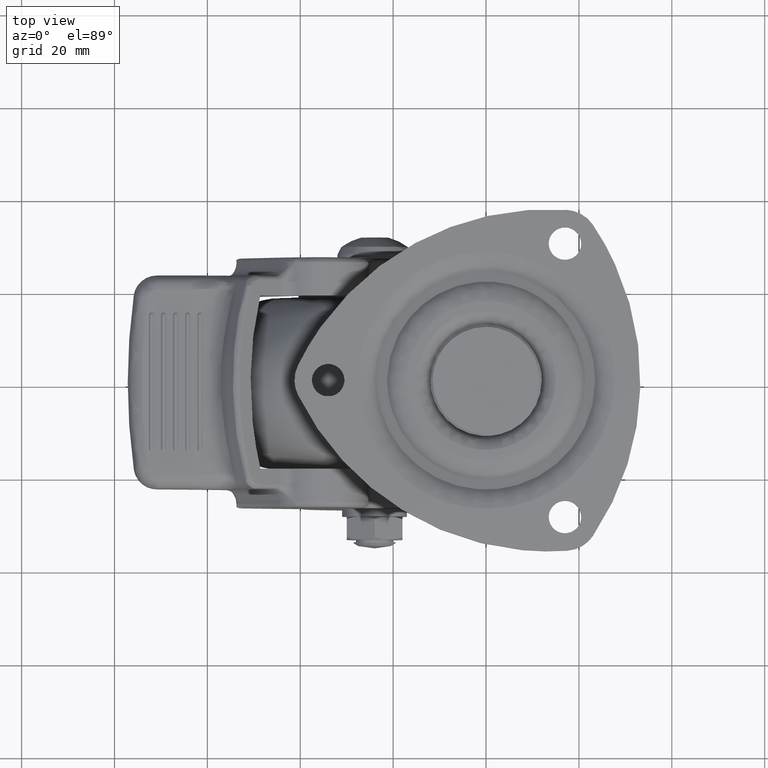
[diagram: clean part render]
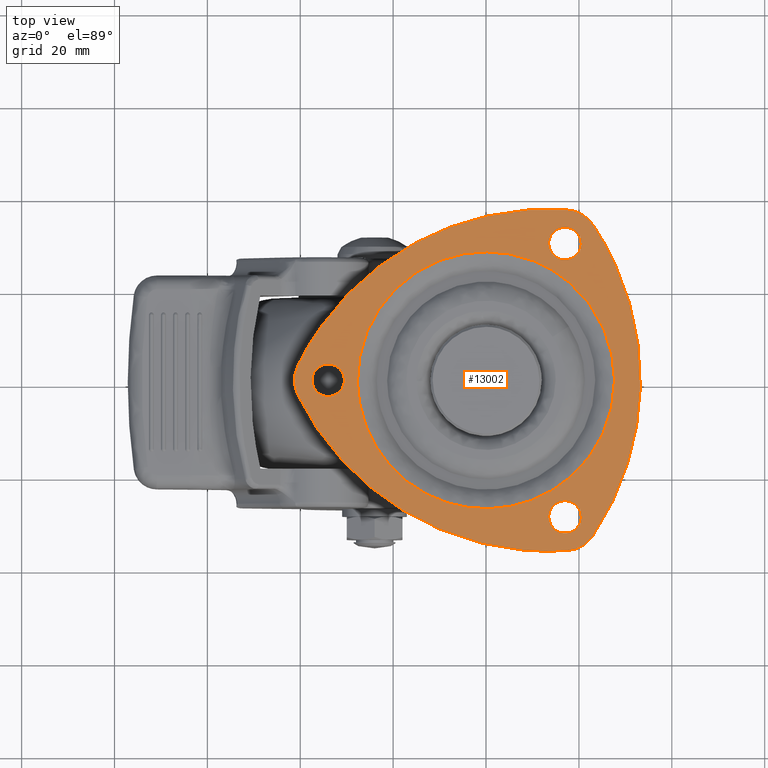
[diagram: same view with one face highlighted and labeled with its STEP entity id]
A machine part, top view. The second image highlights one B-rep face of the part: STEP entity #13002.
In plain terms, the highlighted face is a freeform B-spline surface patch.
Its self-contained STEP definition (entity closure, byte-faithful):
#11365=CARTESIAN_POINT('',(16.586880178302810,25.969329657774541,-0.000014399278325));
#11366=VERTEX_POINT('',#11365);
#11367=CARTESIAN_POINT('',(20.500000000000000,29.444863000000002,-0.000014399278325));
#11368=VERTEX_POINT('',#11367);
#11369=CARTESIAN_POINT('',(16.586880178302810,25.969329657774541,-0.000014399278325));
#11370=CARTESIAN_POINT('',(16.792715580815571,25.944863000000005,-0.000014399278325));
#11371=CARTESIAN_POINT('',(17.0,25.944863000000002,-0.000014399278325));
#11372=CARTESIAN_POINT('',(20.499999999999996,25.944862999999998,-0.000014399278325));
#11373=CARTESIAN_POINT('',(20.500000000000000,29.444863000000002,-0.000014399278325));
#11381=(BOUNDED_CURVE()B_SPLINE_CURVE(2,(#11369,#11370,#11371,#11372,#11373),.UNSPECIFIED.,.F.,.U.)B_SPLINE_CURVE_WITH_KNOTS((3,2,3),(0.229562473476886,0.250000000000000,0.500000000000000),.UNSPECIFIED.)CURVE()GEOMETRIC_REPRESENTATION_ITEM()RATIONAL_B_SPLINE_CURVE((0.956026754111918,0.976055948288239,1.0,0.707106781186547,1.0))REPRESENTATION_ITEM(''));
#11382=EDGE_CURVE('',#11366,#11368,#11381,.T.);
#11384=CARTESIAN_POINT('',(17.213669888476620,32.938334794470137,-0.000014399278325));
#11385=VERTEX_POINT('',#11384);
#11386=CARTESIAN_POINT('',(20.500000000000000,29.444863000000002,-0.000014399278325));
#11387=CARTESIAN_POINT('',(20.499999999999989,32.737334233972362,-0.000014399278325));
#11388=CARTESIAN_POINT('',(17.213669888476627,32.938334794470144,-0.000014399278325));
#11396=(BOUNDED_CURVE()B_SPLINE_CURVE(2,(#11386,#11387,#11388),.UNSPECIFIED.,.F.,.U.)B_SPLINE_CURVE_WITH_KNOTS((3,3),(0.500000000000000,0.739332962231633),.UNSPECIFIED.)CURVE()GEOMETRIC_REPRESENTATION_ITEM()RATIONAL_B_SPLINE_CURVE((1.0,0.719603993295274,0.976072041651052))REPRESENTATION_ITEM(''));
#11397=EDGE_CURVE('',#11368,#11385,#11396,.T.);
#11464=CARTESIAN_POINT('',(13.500000000000000,29.444863000000002,-0.000014399278325));
#11465=VERTEX_POINT('',#11464);
#11466=CARTESIAN_POINT('',(13.500000000000000,29.444863000000002,-0.000014399278325));
#11467=CARTESIAN_POINT('',(13.500000000000002,26.336252159888144,-0.000014399278325));
#11468=CARTESIAN_POINT('',(16.586880178302817,25.969329657774537,-0.000014399278325));
#11476=(BOUNDED_CURVE()B_SPLINE_CURVE(2,(#11466,#11467,#11468),.UNSPECIFIED.,.F.,.U.)B_SPLINE_CURVE_WITH_KNOTS((3,3),(0.0,0.229562473476886),.UNSPECIFIED.)CURVE()GEOMETRIC_REPRESENTATION_ITEM()RATIONAL_B_SPLINE_CURVE((1.0,0.731050832898308,0.956026754111918))REPRESENTATION_ITEM(''));
#11477=EDGE_CURVE('',#11465,#11366,#11476,.T.);
#11511=CARTESIAN_POINT('',(17.213669888476627,32.938334794470137,-0.000014399278325));
#11512=CARTESIAN_POINT('',(17.106934671649970,32.944863000000005,-0.000014399278325));
#11513=CARTESIAN_POINT('',(17.0,32.944863000000012,-0.000014399278325));
#11514=CARTESIAN_POINT('',(13.500000000000002,32.944863000000012,-0.000014399278325));
#11515=CARTESIAN_POINT('',(13.500000000000000,29.444863000000002,-0.000014399278325));
#11523=(BOUNDED_CURVE()B_SPLINE_CURVE(2,(#11511,#11512,#11513,#11514,#11515),.UNSPECIFIED.,.F.,.U.)B_SPLINE_CURVE_WITH_KNOTS((3,2,3),(0.739332962231633,0.750000000000000,1.0),.UNSPECIFIED.)CURVE()GEOMETRIC_REPRESENTATION_ITEM()RATIONAL_B_SPLINE_CURVE((0.976072041651052,0.987502787891274,1.0,0.707106781186547,1.0))REPRESENTATION_ITEM(''));
#11524=EDGE_CURVE('',#11385,#11465,#11523,.T.);
#11551=CARTESIAN_POINT('',(16.586880178302810,-32.920397342225463,-0.000014399278325));
#11552=VERTEX_POINT('',#11551);
#11553=CARTESIAN_POINT('',(20.500000000000000,-29.444863999999999,-0.000014399278325));
#11554=VERTEX_POINT('',#11553);
#11555=CARTESIAN_POINT('',(16.586880178302817,-32.920397342225471,-0.000014399278325));
#11556=CARTESIAN_POINT('',(16.792715580815564,-32.944864000000003,-0.000014399278325));
#11557=CARTESIAN_POINT('',(17.0,-32.944864000000003,-0.000014399278325));
#11558=CARTESIAN_POINT('',(20.499999999999996,-32.944864000000010,-0.000014399278325));
#11559=CARTESIAN_POINT('',(20.500000000000000,-29.444863999999999,-0.000014399278325));
#11567=(BOUNDED_CURVE()B_SPLINE_CURVE(2,(#11555,#11556,#11557,#11558,#11559),.UNSPECIFIED.,.F.,.U.)B_SPLINE_CURVE_WITH_KNOTS((3,2,3),(0.229562473476886,0.250000000000000,0.500000000000000),.UNSPECIFIED.)CURVE()GEOMETRIC_REPRESENTATION_ITEM()RATIONAL_B_SPLINE_CURVE((0.956026754111917,0.976055948288239,1.0,0.707106781186547,1.0))REPRESENTATION_ITEM(''));
#11568=EDGE_CURVE('',#11552,#11554,#11567,.T.);
#11570=CARTESIAN_POINT('',(17.213669888476620,-25.951392205529871,-0.000014399278325));
#11571=VERTEX_POINT('',#11570);
#11572=CARTESIAN_POINT('',(20.500000000000000,-29.444863999999999,-0.000014399278325));
#11573=CARTESIAN_POINT('',(20.499999999999989,-26.152392766027646,-0.000014399278325));
#11574=CARTESIAN_POINT('',(17.213669888476627,-25.951392205529864,-0.000014399278325));
#11582=(BOUNDED_CURVE()B_SPLINE_CURVE(2,(#11572,#11573,#11574),.UNSPECIFIED.,.F.,.U.)B_SPLINE_CURVE_WITH_KNOTS((3,3),(0.500000000000000,0.739332962231633),.UNSPECIFIED.)CURVE()GEOMETRIC_REPRESENTATION_ITEM()RATIONAL_B_SPLINE_CURVE((1.0,0.719603993295274,0.976072041651052))REPRESENTATION_ITEM(''));
#11583=EDGE_CURVE('',#11554,#11571,#11582,.T.);
#11650=CARTESIAN_POINT('',(13.500000000000000,-29.444863999999999,-0.000014399278325));
#11651=VERTEX_POINT('',#11650);
#11652=CARTESIAN_POINT('',(13.500000000000000,-29.444863999999999,-0.000014399278325));
#11653=CARTESIAN_POINT('',(13.500000000000004,-32.553474840111853,-0.000014399278325));
#11654=CARTESIAN_POINT('',(16.586880178302810,-32.920397342225463,-0.000014399278325));
#11662=(BOUNDED_CURVE()B_SPLINE_CURVE(2,(#11652,#11653,#11654),.UNSPECIFIED.,.F.,.U.)B_SPLINE_CURVE_WITH_KNOTS((3,3),(0.0,0.229562473476885),.UNSPECIFIED.)CURVE()GEOMETRIC_REPRESENTATION_ITEM()RATIONAL_B_SPLINE_CURVE((1.0,0.731050832898309,0.956026754111917))REPRESENTATION_ITEM(''));
#11663=EDGE_CURVE('',#11651,#11552,#11662,.T.);
#11697=CARTESIAN_POINT('',(17.213669888476627,-25.951392205529867,-0.000014399278325));
#11698=CARTESIAN_POINT('',(17.106934671649970,-25.944864000000003,-0.000014399278325));
#11699=CARTESIAN_POINT('',(17.0,-25.944863999999999,-0.000014399278325));
#11700=CARTESIAN_POINT('',(13.500000000000002,-25.944863999999995,-0.000014399278325));
#11701=CARTESIAN_POINT('',(13.500000000000000,-29.444863999999999,-0.000014399278325));
#11709=(BOUNDED_CURVE()B_SPLINE_CURVE(2,(#11697,#11698,#11699,#11700,#11701),.UNSPECIFIED.,.F.,.U.)B_SPLINE_CURVE_WITH_KNOTS((3,2,3),(0.739332962231633,0.750000000000000,1.0),.UNSPECIFIED.)CURVE()GEOMETRIC_REPRESENTATION_ITEM()RATIONAL_B_SPLINE_CURVE((0.976072041651052,0.987502787891274,1.0,0.707106781186547,1.0))REPRESENTATION_ITEM(''));
#11710=EDGE_CURVE('',#11571,#11651,#11709,.T.);
#11737=CARTESIAN_POINT('',(-34.413119821697187,-3.475533342225461,-0.000014399278325));
#11738=VERTEX_POINT('',#11737);
#11739=CARTESIAN_POINT('',(-30.500000000000000,0.0,-0.000014399278325));
#11740=VERTEX_POINT('',#11739);
#11741=CARTESIAN_POINT('',(-34.413119821697194,-3.475533342225460,-0.000014399278325));
#11742=CARTESIAN_POINT('',(-34.207284419184433,-3.500000000000000,-0.000014399278325));
#11743=CARTESIAN_POINT('',(-34.0,-3.500000000000000,-0.000014399278325));
#11744=CARTESIAN_POINT('',(-30.500000000000004,-3.500000000000000,-0.000014399278325));
#11745=CARTESIAN_POINT('',(-30.500000000000000,0.0,-0.000014399278325));
#11753=(BOUNDED_CURVE()B_SPLINE_CURVE(2,(#11741,#11742,#11743,#11744,#11745),.UNSPECIFIED.,.F.,.U.)B_SPLINE_CURVE_WITH_KNOTS((3,2,3),(0.229562473476886,0.250000000000000,0.500000000000000),.UNSPECIFIED.)CURVE()GEOMETRIC_REPRESENTATION_ITEM()RATIONAL_B_SPLINE_CURVE((0.956026754111917,0.976055948288239,1.0,0.707106781186547,1.0))REPRESENTATION_ITEM(''));
#11754=EDGE_CURVE('',#11738,#11740,#11753,.T.);
#11756=CARTESIAN_POINT('',(-33.786330111523370,3.493471794470135,-0.000014399278325));
#11757=VERTEX_POINT('',#11756);
#11758=CARTESIAN_POINT('',(-30.500000000000000,0.0,-0.000014399278325));
#11759=CARTESIAN_POINT('',(-30.500000000000004,3.292471233972352,-0.000014399278325));
#11760=CARTESIAN_POINT('',(-33.786330111523363,3.493471794470135,-0.000014399278325));
#11768=(BOUNDED_CURVE()B_SPLINE_CURVE(2,(#11758,#11759,#11760),.UNSPECIFIED.,.F.,.U.)B_SPLINE_CURVE_WITH_KNOTS((3,3),(0.500000000000000,0.739332962231633),.UNSPECIFIED.)CURVE()GEOMETRIC_REPRESENTATION_ITEM()RATIONAL_B_SPLINE_CURVE((1.0,0.719603993295274,0.976072041651052))REPRESENTATION_ITEM(''));
#11769=EDGE_CURVE('',#11740,#11757,#11768,.T.);
#11836=CARTESIAN_POINT('',(-37.500000000000007,0.0,-0.000014399278325));
#11837=VERTEX_POINT('',#11836);
#11838=CARTESIAN_POINT('',(-37.500000000000007,0.0,-0.000014399278325));
#11839=CARTESIAN_POINT('',(-37.500000000000007,-3.108610840111852,-0.000014399278325));
#11840=CARTESIAN_POINT('',(-34.413119821697208,-3.475533342225461,-0.000014399278325));
#11848=(BOUNDED_CURVE()B_SPLINE_CURVE(2,(#11838,#11839,#11840),.UNSPECIFIED.,.F.,.U.)B_SPLINE_CURVE_WITH_KNOTS((3,3),(0.0,0.229562473476886),.UNSPECIFIED.)CURVE()GEOMETRIC_REPRESENTATION_ITEM()RATIONAL_B_SPLINE_CURVE((1.0,0.731050832898308,0.956026754111918))REPRESENTATION_ITEM(''));
#11849=EDGE_CURVE('',#11837,#11738,#11848,.T.);
#11883=CARTESIAN_POINT('',(-33.786330111523370,3.493471794470135,-0.000014399278325));
#11884=CARTESIAN_POINT('',(-33.893065328350026,3.500000000000000,-0.000014399278325));
#11885=CARTESIAN_POINT('',(-34.0,3.500000000000000,-0.000014399278325));
#11886=CARTESIAN_POINT('',(-37.500000000000000,3.500000000000000,-0.000014399278325));
#11887=CARTESIAN_POINT('',(-37.500000000000007,0.0,-0.000014399278325));
#11895=(BOUNDED_CURVE()B_SPLINE_CURVE(2,(#11883,#11884,#11885,#11886,#11887),.UNSPECIFIED.,.F.,.U.)B_SPLINE_CURVE_WITH_KNOTS((3,2,3),(0.739332962231633,0.750000000000000,1.0),.UNSPECIFIED.)CURVE()GEOMETRIC_REPRESENTATION_ITEM()RATIONAL_B_SPLINE_CURVE((0.976072041651052,0.987502787891274,1.0,0.707106781186547,1.0))REPRESENTATION_ITEM(''));
#11896=EDGE_CURVE('',#11757,#11837,#11895,.T.);
#12135=CARTESIAN_POINT('',(-22.979231977549350,15.406497896716790,-0.000014399278313));
#12136=VERTEX_POINT('',#12135);
#12150=CARTESIAN_POINT('',(-27.665958862232500,0.0,-0.000014399278314));
#12151=VERTEX_POINT('',#12150);
#12152=CARTESIAN_POINT('',(-27.665958862232500,0.0,-0.000014399278314));
#12153=CARTESIAN_POINT('',(-27.665958862232500,8.416110788857720,-0.000014399278314));
#12154=CARTESIAN_POINT('',(-22.979231977549354,15.406497896716800,-0.000014399278313));
#12162=(BOUNDED_CURVE()B_SPLINE_CURVE(2,(#12152,#12153,#12154),.UNSPECIFIED.,.F.,.U.)B_SPLINE_CURVE_WITH_KNOTS((3,3),(0.0,0.095516885357211),.UNSPECIFIED.)CURVE()GEOMETRIC_REPRESENTATION_ITEM()RATIONAL_B_SPLINE_CURVE((1.0,0.888095007986763,0.861700546317751))REPRESENTATION_ITEM(''));
#12163=EDGE_CURVE('',#12151,#12136,#12162,.T.);
#12165=CARTESIAN_POINT('',(27.665958862232500,0.0,-0.000014399278314));
#12166=VERTEX_POINT('',#12165);
#12167=CARTESIAN_POINT('',(27.665958862232500,0.0,-0.000014399278314));
#12168=CARTESIAN_POINT('',(27.665958862232493,-27.665958862232493,-0.000014399278314));
#12169=CARTESIAN_POINT('',(0.0,-27.665958862232500,-0.000014399278314));
#12170=CARTESIAN_POINT('',(-27.665958862232493,-27.665958862232493,-0.000014399278314));
#12171=CARTESIAN_POINT('',(-27.665958862232500,0.0,-0.000014399278314));
#12179=(BOUNDED_CURVE()B_SPLINE_CURVE(2,(#12167,#12168,#12169,#12170,#12171),.UNSPECIFIED.,.F.,.U.)B_SPLINE_CURVE_WITH_KNOTS((3,2,3),(0.500000000000000,0.750000000000000,1.0),.UNSPECIFIED.)CURVE()GEOMETRIC_REPRESENTATION_ITEM()RATIONAL_B_SPLINE_CURVE((1.0,0.707106781186548,1.0,0.707106781186548,1.0))REPRESENTATION_ITEM(''));
#12180=EDGE_CURVE('',#12166,#12151,#12179,.T.);
#12182=CARTESIAN_POINT('',(17.956732983855030,21.046639166583301,-0.000014399278313));
#12183=VERTEX_POINT('',#12182);
#12184=CARTESIAN_POINT('',(17.956732983855030,21.046639166583301,-0.000014399278313));
#12185=CARTESIAN_POINT('',(27.665958862232497,12.762847386520775,-0.000014399278314));
#12186=CARTESIAN_POINT('',(27.665958862232500,0.0,-0.000014399278314));
#12194=(BOUNDED_CURVE()B_SPLINE_CURVE(2,(#12184,#12185,#12186),.UNSPECIFIED.,.F.,.U.)B_SPLINE_CURVE_WITH_KNOTS((3,3),(0.363065093416662,0.500000000000000),.UNSPECIFIED.)CURVE()GEOMETRIC_REPRESENTATION_ITEM()RATIONAL_B_SPLINE_CURVE((0.854888440015820,0.839570777771547,1.0))REPRESENTATION_ITEM(''));
#12195=EDGE_CURVE('',#12183,#12166,#12194,.T.);
#12252=CARTESIAN_POINT('',(-22.979231977549347,15.406497896716797,-0.000014399278313));
#12253=CARTESIAN_POINT('',(-14.759838059514438,27.665958862232497,-0.000014399278314));
#12254=CARTESIAN_POINT('',(0.0,27.665958862232500,-0.000014399278314));
#12255=CARTESIAN_POINT('',(10.198393355208710,27.665958862232497,-0.000014399278314));
#12256=CARTESIAN_POINT('',(17.956732983855030,21.046639166583301,-0.000014399278313));
#12264=(BOUNDED_CURVE()B_SPLINE_CURVE(2,(#12252,#12253,#12254,#12255,#12256),.UNSPECIFIED.,.F.,.U.)B_SPLINE_CURVE_WITH_KNOTS((3,2,3),(0.095516885357211,0.250000000000000,0.363065093416662),.UNSPECIFIED.)CURVE()GEOMETRIC_REPRESENTATION_ITEM()RATIONAL_B_SPLINE_CURVE((0.861700546317751,0.819011773199784,1.0,0.867536003415001,0.854888440015820))REPRESENTATION_ITEM(''));
#12265=EDGE_CURVE('',#12136,#12183,#12264,.T.);
#12881=CARTESIAN_POINT('',(-44.970418863855969,40.493660379388039,-0.000014399278314));
#12882=CARTESIAN_POINT('',(36.953280852154982,40.493660379388039,-0.000014399278314));
#12883=CARTESIAN_POINT('',(-44.970418863855969,-40.493659716741213,-0.000014399278314));
#12884=CARTESIAN_POINT('',(36.953280852154982,-40.493659716741213,-0.000014399278314));
#12885=B_SPLINE_SURFACE_WITH_KNOTS('',1,1,((#12881,#12883),(#12882,#12884)),.UNSPECIFIED.,.F.,.F.,.U.,(2,2),(2,2),(0.0,81.923699716010958),(0.0,80.987320096129253),.UNSPECIFIED.);
#12886=CARTESIAN_POINT('',(23.015388388515749,33.491788056874647,-0.000014399278325));
#12887=VERTEX_POINT('',#12886);
#12888=CARTESIAN_POINT('',(17.497044081159849,36.677805277511851,-0.000014399278325));
#12889=VERTEX_POINT('',#12888);
#12890=CARTESIAN_POINT('',(23.015388388515749,33.491788056874647,-0.000014399278325));
#12891=CARTESIAN_POINT('',(21.035548891077902,36.434640572380573,-0.000014399278325));
#12892=CARTESIAN_POINT('',(17.497044081159849,36.677805277511851,-0.000014399278325));
#12900=(BOUNDED_CURVE()B_SPLINE_CURVE(2,(#12890,#12891,#12892),.UNSPECIFIED.,.F.,.U.)CURVE()GEOMETRIC_REPRESENTATION_ITEM()QUASI_UNIFORM_CURVE()RATIONAL_B_SPLINE_CURVE((1.0,0.898266722989651,1.0))REPRESENTATION_ITEM(''));
#12901=EDGE_CURVE('',#12887,#12889,#12900,.T.);
#12902=ORIENTED_EDGE('',*,*,#12901,.T.);
#12903=CARTESIAN_POINT('',(-40.512434469675547,3.186017220637175,-0.000014399278325));
#12904=VERTEX_POINT('',#12903);
#12905=CARTESIAN_POINT('',(17.497044081159839,36.677805277511872,-0.000014399278325));
#12906=CARTESIAN_POINT('',(-22.773694567497525,39.445194561564740,-0.000014399278325));
#12907=CARTESIAN_POINT('',(-40.512434469675547,3.186017220637188,-0.000014399278325));
#12915=(BOUNDED_CURVE()B_SPLINE_CURVE(2,(#12905,#12906,#12907),.UNSPECIFIED.,.F.,.U.)CURVE()GEOMETRIC_REPRESENTATION_ITEM()QUASI_UNIFORM_CURVE()RATIONAL_B_SPLINE_CURVE((1.0,0.829708806475265,1.0))REPRESENTATION_ITEM(''));
#12916=EDGE_CURVE('',#12889,#12904,#12915,.T.);
#12917=ORIENTED_EDGE('',*,*,#12916,.T.);
#12918=CARTESIAN_POINT('',(-40.512433752585700,-3.186017359993685,-0.000014399278325));
#12919=VERTEX_POINT('',#12918);
#12920=CARTESIAN_POINT('',(-40.512434469675547,3.186017220637175,-0.000014399278325));
#12921=CARTESIAN_POINT('',(-42.071099256600071,-0.000000245085826,-0.000014399278325));
#12922=CARTESIAN_POINT('',(-40.512433752585792,-3.186017359993728,-0.000014399278325));
#12930=(BOUNDED_CURVE()B_SPLINE_CURVE(2,(#12920,#12921,#12922),.UNSPECIFIED.,.F.,.U.)CURVE()GEOMETRIC_REPRESENTATION_ITEM()QUASI_UNIFORM_CURVE()RATIONAL_B_SPLINE_CURVE((1.0,0.898266737838886,1.0))REPRESENTATION_ITEM(''));
#12931=EDGE_CURVE('',#12904,#12919,#12930,.T.);
#12932=ORIENTED_EDGE('',*,*,#12931,.T.);
#12933=CARTESIAN_POINT('',(17.497044081159750,-36.677806277512147,-0.000014399278325));
#12934=VERTEX_POINT('',#12933);
#12935=CARTESIAN_POINT('',(-40.512433752585700,-3.186017359993685,-0.000014399278325));
#12936=CARTESIAN_POINT('',(-22.773694440163965,-39.445195359732807,-0.000014399278325));
#12937=CARTESIAN_POINT('',(17.497044081159750,-36.677806277512147,-0.000014399278325));
#12945=(BOUNDED_CURVE()B_SPLINE_CURVE(2,(#12935,#12936,#12937),.UNSPECIFIED.,.F.,.U.)CURVE()GEOMETRIC_REPRESENTATION_ITEM()QUASI_UNIFORM_CURVE()RATIONAL_B_SPLINE_CURVE((1.0,0.829708804344992,1.0))REPRESENTATION_ITEM(''));
#12946=EDGE_CURVE('',#12919,#12934,#12945,.T.);
#12947=ORIENTED_EDGE('',*,*,#12946,.T.);
#12948=CARTESIAN_POINT('',(23.015388846945651,-33.491788390205699,-0.000014399278325));
#12949=VERTEX_POINT('',#12948);
#12950=CARTESIAN_POINT('',(17.497044081159750,-36.677806277512147,-0.000014399278325));
#12951=CARTESIAN_POINT('',(21.035549391231800,-36.434641538010311,-0.000014399278325));
#12952=CARTESIAN_POINT('',(23.015388846945658,-33.491788390205713,-0.000014399278325));
#12960=(BOUNDED_CURVE()B_SPLINE_CURVE(2,(#12950,#12951,#12952),.UNSPECIFIED.,.F.,.U.)CURVE()GEOMETRIC_REPRESENTATION_ITEM()QUASI_UNIFORM_CURVE()RATIONAL_B_SPLINE_CURVE((1.0,0.898266698470266,1.0))REPRESENTATION_ITEM(''));
#12961=EDGE_CURVE('',#12934,#12949,#12960,.T.);
#12962=ORIENTED_EDGE('',*,*,#12961,.T.);
#12963=CARTESIAN_POINT('',(23.015388846945651,-33.491788390205699,-0.000014399278325));
#12964=CARTESIAN_POINT('',(45.547387143376824,-0.000000012458430,-0.000014399278325));
#12965=CARTESIAN_POINT('',(23.015388388515749,33.491788056874647,-0.000014399278325));
#12973=(BOUNDED_CURVE()B_SPLINE_CURVE(2,(#12963,#12964,#12965),.UNSPECIFIED.,.F.,.U.)CURVE()GEOMETRIC_REPRESENTATION_ITEM()QUASI_UNIFORM_CURVE()RATIONAL_B_SPLINE_CURVE((1.0,0.829708806379097,1.0))REPRESENTATION_ITEM(''));
#12974=EDGE_CURVE('',#12949,#12887,#12973,.T.);
#12975=ORIENTED_EDGE('',*,*,#12974,.T.);
#12976=EDGE_LOOP('',(#12902,#12917,#12932,#12947,#12962,#12975));
#12977=FACE_OUTER_BOUND('',#12976,.T.);
#12978=ORIENTED_EDGE('',*,*,#12180,.T.);
#12979=ORIENTED_EDGE('',*,*,#12163,.T.);
#12980=ORIENTED_EDGE('',*,*,#12265,.T.);
#12981=ORIENTED_EDGE('',*,*,#12195,.T.);
#12982=EDGE_LOOP('',(#12978,#12979,#12980,#12981));
#12983=FACE_BOUND('',#12982,.T.);
#12984=ORIENTED_EDGE('',*,*,#11769,.F.);
#12985=ORIENTED_EDGE('',*,*,#11754,.F.);
#12986=ORIENTED_EDGE('',*,*,#11849,.F.);
#12987=ORIENTED_EDGE('',*,*,#11896,.F.);
#12988=EDGE_LOOP('',(#12984,#12985,#12986,#12987));
#12989=FACE_BOUND('',#12988,.T.);
#12990=ORIENTED_EDGE('',*,*,#11583,.F.);
#12991=ORIENTED_EDGE('',*,*,#11568,.F.);
#12992=ORIENTED_EDGE('',*,*,#11663,.F.);
#12993=ORIENTED_EDGE('',*,*,#11710,.F.);
#12994=EDGE_LOOP('',(#12990,#12991,#12992,#12993));
#12995=FACE_BOUND('',#12994,.T.);
#12996=ORIENTED_EDGE('',*,*,#11397,.F.);
#12997=ORIENTED_EDGE('',*,*,#11382,.F.);
#12998=ORIENTED_EDGE('',*,*,#11477,.F.);
#12999=ORIENTED_EDGE('',*,*,#11524,.F.);
#13000=EDGE_LOOP('',(#12996,#12997,#12998,#12999));
#13001=FACE_BOUND('',#13000,.T.);
#13002=ADVANCED_FACE('',(#12977,#12983,#12989,#12995,#13001),#12885,.F.);